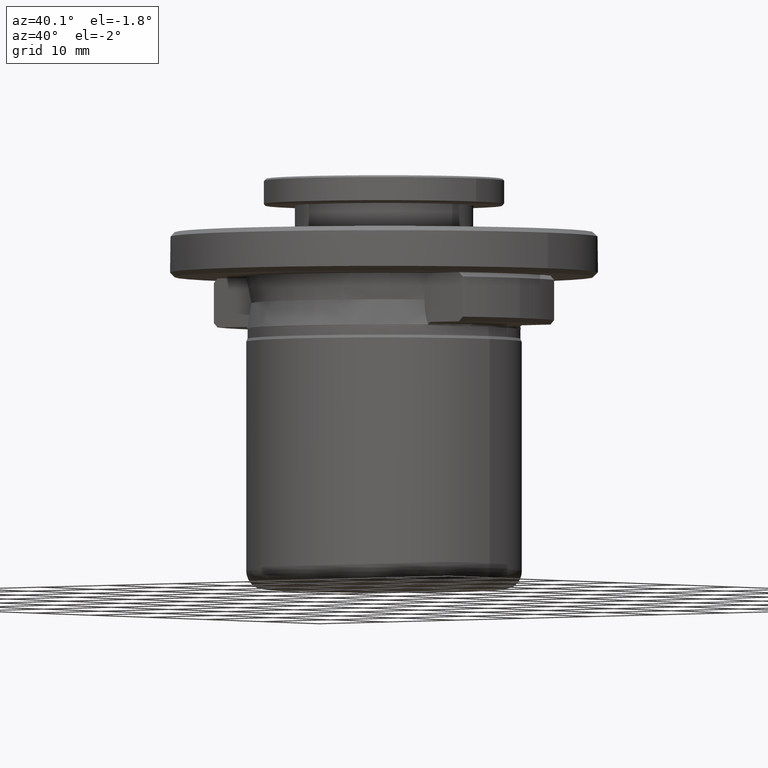
[diagram: clean part render]
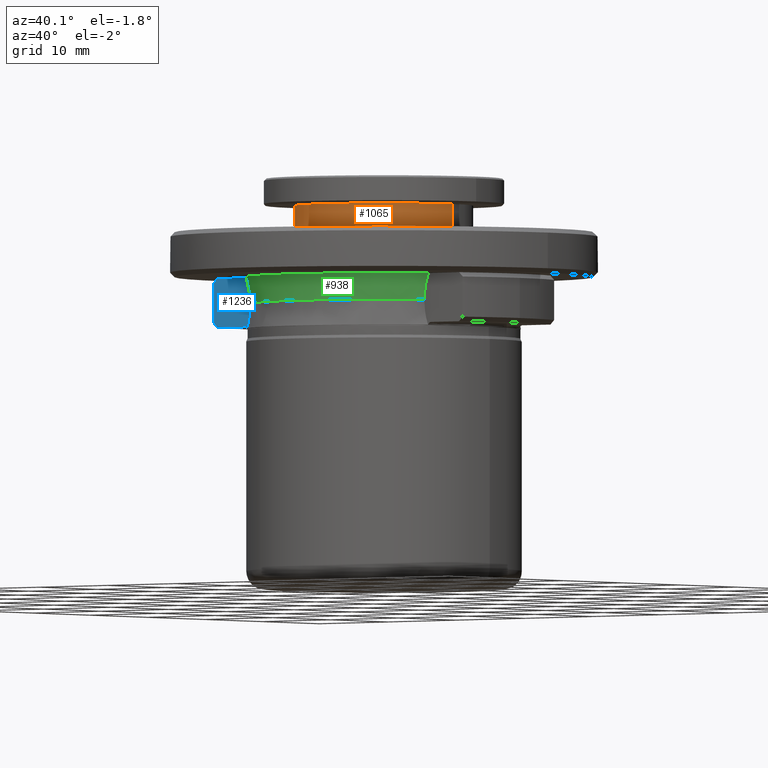
[diagram: same view with three faces highlighted in distinct colors, each labeled with its STEP entity id]
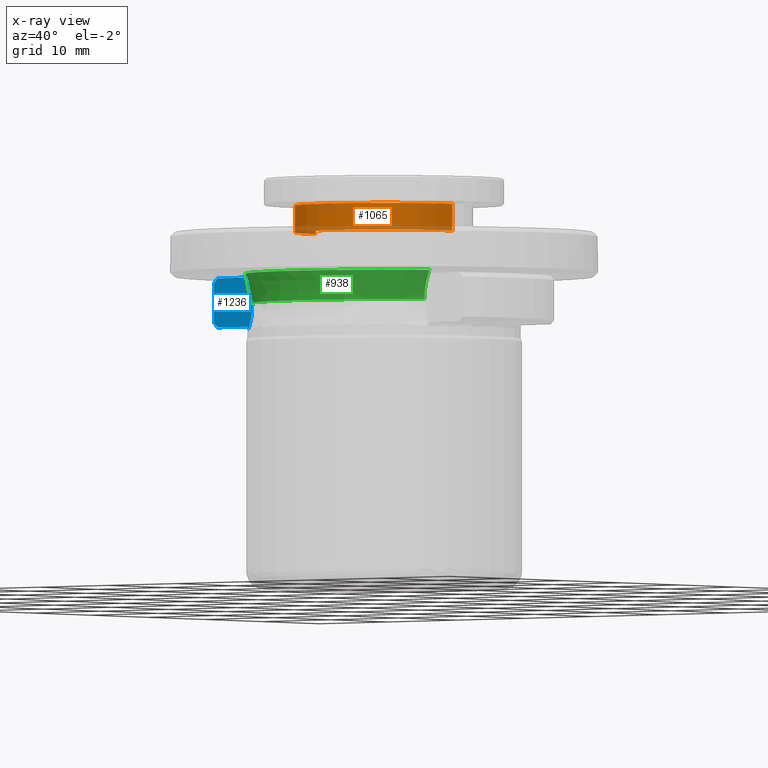
[diagram: x-ray of the same camera — body ghosted, the three highlighted faces saturated]
A machine part, auxiliary view with three faces highlighted in distinct colors.
The next image is the same camera in x-ray (body ghosted, the three faces saturated) — at least one of them is partly hidden behind the body in this view.
Their STEP definitions:

[orange] entity #1065 — the highlighted cylindrical surface (partial cylindrical patch) has radius 10 mm, axis along (-0, -0, 1).
#2 = CIRCLE ( 'NONE', #1336, 9.999999999999998200 ) ;
#9 = VECTOR ( 'NONE', #581, 1000.000000000000000 ) ;
#100 = EDGE_LOOP ( 'NONE', ( #1506, #1104, #1425, #1411 ) ) ;
#117 = VERTEX_POINT ( 'NONE', #930 ) ;
#121 = DIRECTION ( 'NONE',  ( -0.0000000000000000000, -0.0000000000000000000, 1.000000000000000000 ) ) ;
#189 = DIRECTION ( 'NONE',  ( 1.000000000000000000, 0.0000000000000000000, 0.0000000000000000000 ) ) ;
#396 = CIRCLE ( 'NONE', #1589, 9.999999999999998200 ) ;
#440 = CARTESIAN_POINT ( 'NONE',  ( 9.999999999999998200, 0.0000000000000000000, 15.43848561500005300 ) ) ;
#544 = EDGE_CURVE ( 'NONE', #1726, #1378, #396, .T. ) ;
#555 = DIRECTION ( 'NONE',  ( -0.0000000000000000000, -0.0000000000000000000, 1.000000000000000000 ) ) ;
#557 = LINE ( 'NONE', #1624, #1310 ) ;
#562 = AXIS2_PLACEMENT_3D ( 'NONE', #1715, #1706, #189 ) ;
#581 = DIRECTION ( 'NONE',  ( -0.0000000000000000000, -0.0000000000000000000, 1.000000000000000000 ) ) ;
#600 = VERTEX_POINT ( 'NONE', #440 ) ;
#702 = DIRECTION ( 'NONE',  ( 1.000000000000000000, 0.0000000000000000000, 0.0000000000000000000 ) ) ;
#822 = LINE ( 'NONE', #1598, #9 ) ;
#839 = CYLINDRICAL_SURFACE ( 'NONE', #562, 9.999999999999998200 ) ;
#876 = EDGE_CURVE ( 'NONE', #1378, #600, #822, .T. ) ;
#930 = CARTESIAN_POINT ( 'NONE',  ( -9.999999999999998200, 1.224646799147353100E-015, 15.43848561500005300 ) ) ;
#1065 = ADVANCED_FACE ( 'NONE', ( #1651 ), #839, .T. ) ;
#1104 = ORIENTED_EDGE ( 'NONE', *, *, #544, .T. ) ;
#1159 = DIRECTION ( 'NONE',  ( -1.000000000000000000, 0.0000000000000000000, 0.0000000000000000000 ) ) ;
#1310 = VECTOR ( 'NONE', #1444, 1000.000000000000000 ) ;
#1321 = EDGE_CURVE ( 'NONE', #1726, #117, #557, .T. ) ;
#1336 = AXIS2_PLACEMENT_3D ( 'NONE', #1619, #555, #702 ) ;
#1378 = VERTEX_POINT ( 'NONE', #1816 ) ;
#1395 = EDGE_CURVE ( 'NONE', #117, #600, #2, .T. ) ;
#1411 = ORIENTED_EDGE ( 'NONE', *, *, #1395, .F. ) ;
#1425 = ORIENTED_EDGE ( 'NONE', *, *, #876, .T. ) ;
#1444 = DIRECTION ( 'NONE',  ( -0.0000000000000000000, -0.0000000000000000000, 1.000000000000000000 ) ) ;
#1478 = CARTESIAN_POINT ( 'NONE',  ( -9.999999999999998200, 1.224646799147353100E-015, 12.43848561500000100 ) ) ;
#1506 = ORIENTED_EDGE ( 'NONE', *, *, #1321, .F. ) ;
#1589 = AXIS2_PLACEMENT_3D ( 'NONE', #1617, #121, #1159 ) ;
#1598 = CARTESIAN_POINT ( 'NONE',  ( 9.999999999999998200, 0.0000000000000000000, 25.60543566587849200 ) ) ;
#1617 = CARTESIAN_POINT ( 'NONE',  ( 0.0000000000000000000, 0.0000000000000000000, 12.43848561500000100 ) ) ;
#1619 = CARTESIAN_POINT ( 'NONE',  ( 0.0000000000000000000, 0.0000000000000000000, 15.43848561500005300 ) ) ;
#1624 = CARTESIAN_POINT ( 'NONE',  ( -9.999999999999998200, 1.224646799147353100E-015, 25.60543566587849200 ) ) ;
#1651 = FACE_OUTER_BOUND ( 'NONE', #100, .T. ) ;
#1706 = DIRECTION ( 'NONE',  ( -0.0000000000000000000, -0.0000000000000000000, 1.000000000000000000 ) ) ;
#1715 = CARTESIAN_POINT ( 'NONE',  ( 0.0000000000000000000, 0.0000000000000000000, 25.60543566587849200 ) ) ;
#1726 = VERTEX_POINT ( 'NONE', #1478 ) ;
#1816 = CARTESIAN_POINT ( 'NONE',  ( 9.999999999999998200, 0.0000000000000000000, 12.43848561500000100 ) ) ;

[blue] entity #1236 — the highlighted planar face has unit normal (0, 1, 0).
#10 = AXIS2_PLACEMENT_3D ( 'NONE', #569, #335, #912 ) ;
#14 = CARTESIAN_POINT ( 'NONE',  ( -18.24301236209764500, -7.950000000000000200, 6.938485614999998500 ) ) ;
#32 = CARTESIAN_POINT ( 'NONE',  ( -18.24301236209764500, -7.950000000000000200, 6.938485614999998500 ) ) ;
#44 = CARTESIAN_POINT ( 'NONE',  ( -12.91525301281999700, -7.949999999999996600, 6.721571217286125100 ) ) ;
#55 = CARTESIAN_POINT ( 'NONE',  ( -12.96762867601192500, -7.949999999999996600, 2.087259394702768700 ) ) ;
#97 = CARTESIAN_POINT ( 'NONE',  ( -15.37753341250000000, -7.950000000000000200, 1.938485615938671000 ) ) ;
#122 = CARTESIAN_POINT ( 'NONE',  ( -13.49811800150803100, -7.950000000293274900, 1.938485614484342800 ) ) ;
#127 = VERTEX_POINT ( 'NONE', #1054 ) ;
#140 = VERTEX_POINT ( 'NONE', #32 ) ;
#163 = ORIENTED_EDGE ( 'NONE', *, *, #226, .T. ) ;
#176 = B_SPLINE_CURVE_WITH_KNOTS ( 'NONE', 3,
 ( #1727, #1942, #1135, #473 ),
 .UNSPECIFIED., .F., .F.,
 ( 4, 4 ),
 ( 0.0000000000000000000, 1.000000000000000000 ),
 .UNSPECIFIED. ) ;
#193 = CARTESIAN_POINT ( 'NONE',  ( -13.14428442762027200, -7.950000000000000200, 1.633581560802892700 ) ) ;
#208 = CARTESIAN_POINT ( 'NONE',  ( -13.17140886233333900, -7.950000000000002000, 1.728407944759214000 ) ) ;
#209 = CARTESIAN_POINT ( 'NONE',  ( -12.72843880616561100, -7.950000000000000200, 5.891492498041592400 ) ) ;
#222 = VECTOR ( 'NONE', #502, 1000.000000000000000 ) ;
#226 = EDGE_CURVE ( 'NONE', #497, #1833, #1319, .T. ) ;
#335 = DIRECTION ( 'NONE',  ( 0.0000000000000000000, 1.000000000000000000, 0.0000000000000000000 ) ) ;
#351 = CARTESIAN_POINT ( 'NONE',  ( -12.60188477964945100, -7.950000000000000200, 4.478485616309445300 ) ) ;
#354 = CARTESIAN_POINT ( 'NONE',  ( -12.60188477964945100, -7.950000000000000200, 4.478485616309445300 ) ) ;
#363 = CARTESIAN_POINT ( 'NONE',  ( -12.68096660111386600, -7.950000000000002000, 5.610062528188859900 ) ) ;
#366 = EDGE_CURVE ( 'NONE', #497, #408, #1884, .T. ) ;
#374 = LINE ( 'NONE', #1229, #1944 ) ;
#395 = EDGE_CURVE ( 'NONE', #836, #1576, #176, .T. ) ;
#408 = VERTEX_POINT ( 'NONE', #1028 ) ;
#472 = CARTESIAN_POINT ( 'NONE',  ( -17.69625666640348900, -7.950000000000000200, 7.438485615000023400 ) ) ;
#473 = CARTESIAN_POINT ( 'NONE',  ( -17.69625666548679600, -7.950000000000000200, 1.938485614999998900 ) ) ;
#497 = VERTEX_POINT ( 'NONE', #354 ) ;
#502 = DIRECTION ( 'NONE',  ( -1.000000000000000000, 0.0000000000000000000, 0.0000000000000000000 ) ) ;
#503 = CARTESIAN_POINT ( 'NONE',  ( -13.09798608330491200, -7.949999999999996600, 7.256377663760557300 ) ) ;
#522 = CARTESIAN_POINT ( 'NONE',  ( -12.60188477970642400, -7.949999999999998400, 4.763219922882414400 ) ) ;
#565 = CARTESIAN_POINT ( 'NONE',  ( -12.60188477949831000, -7.950000000000000200, 3.991488783736455700 ) ) ;
#569 = CARTESIAN_POINT ( 'NONE',  ( -12.51205446400000000, -7.950000000000000200, 7.810683759999999900 ) ) ;
#628 = CARTESIAN_POINT ( 'NONE',  ( -13.59632303309489000, -7.950000000000000200, 1.938485614889212700 ) ) ;
#681 = CARTESIAN_POINT ( 'NONE',  ( -18.24301236118092700, -7.950000000000000200, 2.438485614999999400 ) ) ;
#734 = B_SPLINE_CURVE_WITH_KNOTS ( 'NONE', 3,
 ( #472, #1532, #929, #14 ),
 .UNSPECIFIED., .F., .F.,
 ( 4, 4 ),
 ( 0.0000000000000000000, 1.000000000000000000 ),
 .UNSPECIFIED. ) ;
#791 = ORIENTED_EDGE ( 'NONE', *, *, #395, .T. ) ;
#794 = DIRECTION ( 'NONE',  ( 1.000000000000000000, -0.0000000000000000000, -0.0000000000000000000 ) ) ;
#826 = CARTESIAN_POINT ( 'NONE',  ( -12.61783294890506500, -7.950000000000000200, 5.046469899217028000 ) ) ;
#836 = VERTEX_POINT ( 'NONE', #681 ) ;
#848 = CARTESIAN_POINT ( 'NONE',  ( -13.40144944765023300, -7.950000000000000200, 1.911809539114946600 ) ) ;
#889 = B_SPLINE_CURVE_WITH_KNOTS ( 'NONE', 3,
 ( #1840, #122, #848, #1213, #208, #193 ),
 .UNSPECIFIED., .F., .F.,
 ( 4, 2, 4 ),
 ( 0.0000000000000000000, 0.0002891622568369051300, 0.0005783245136738102600 ),
 .UNSPECIFIED. ) ;
#894 = EDGE_CURVE ( 'NONE', #836, #140, #374, .T. ) ;
#912 = DIRECTION ( 'NONE',  ( 0.0000000000000000000, 0.0000000000000000000, -1.000000000000000000 ) ) ;
#929 = CARTESIAN_POINT ( 'NONE',  ( -18.05844173576957000, -7.950000000000000200, 7.107687835708884600 ) ) ;
#952 = CARTESIAN_POINT ( 'NONE',  ( -12.83224210311950700, -7.950000000000000200, 2.552328994701277900 ) ) ;
#959 = CARTESIAN_POINT ( 'NONE',  ( -12.60188477964945100, -7.950000000000000200, 4.478485616309445300 ) ) ;
#987 = ORIENTED_EDGE ( 'NONE', *, *, #1815, .F. ) ;
#997 = VECTOR ( 'NONE', #1501, 1000.000000000000000 ) ;
#1028 = CARTESIAN_POINT ( 'NONE',  ( -13.14428442762027200, -7.950000000000000200, 1.633581560802892700 ) ) ;
#1033 = VERTEX_POINT ( 'NONE', #1330 ) ;
#1044 = LINE ( 'NONE', #1804, #997 ) ;
#1046 = FACE_OUTER_BOUND ( 'NONE', #1085, .T. ) ;
#1053 = CARTESIAN_POINT ( 'NONE',  ( -13.33503374469622000, -7.950000000000000200, 7.773842195335446600 ) ) ;
#1054 = CARTESIAN_POINT ( 'NONE',  ( -13.33503374469622000, -7.950000000000000200, 7.438485616000773100 ) ) ;
#1085 = EDGE_LOOP ( 'NONE', ( #1150, #1880, #791, #1805, #1830, #1620, #163, #987, #1210 ) ) ;
#1110 = CARTESIAN_POINT ( 'NONE',  ( -13.14428442762027200, -7.950000000000000200, 1.633581560802892700 ) ) ;
#1135 = CARTESIAN_POINT ( 'NONE',  ( -17.87618983503620000, -7.950000000000000200, 2.102616727624655900 ) ) ;
#1150 = ORIENTED_EDGE ( 'NONE', *, *, #1919, .T. ) ;
#1210 = ORIENTED_EDGE ( 'NONE', *, *, #1595, .F. ) ;
#1213 = CARTESIAN_POINT ( 'NONE',  ( -13.23840144163047900, -7.950000000000000200, 1.808178987610399100 ) ) ;
#1229 = CARTESIAN_POINT ( 'NONE',  ( -18.24301236100000200, -7.950000000000000200, 4.703711879000000100 ) ) ;
#1236 = ADVANCED_FACE ( 'NONE', ( #1046 ), #1670, .F. ) ;
#1256 = CARTESIAN_POINT ( 'NONE',  ( -12.64875544744961600, -7.950000000000003700, 3.506562385606966500 ) ) ;
#1319 = B_SPLINE_CURVE_WITH_KNOTS ( 'NONE', 3,
 ( #959, #522, #826, #363, #209, #44, #503, #1565 ),
 .UNSPECIFIED., .F., .F.,
 ( 4, 2, 2, 4 ),
 ( 6.548166900401175800E-015, 0.0008505270503339344100, 0.001701054100661320700, 0.003402108201316091900 ),
 .UNSPECIFIED. ) ;
#1330 = CARTESIAN_POINT ( 'NONE',  ( -17.69625666640348900, -7.950000000000000200, 7.438485615000023400 ) ) ;
#1338 = LINE ( 'NONE', #1907, #1743 ) ;
#1387 = LINE ( 'NONE', #97, #222 ) ;
#1501 = DIRECTION ( 'NONE',  ( -0.0000000000000000000, -0.0000000000000000000, 1.000000000000000000 ) ) ;
#1532 = CARTESIAN_POINT ( 'NONE',  ( -17.87618983686940400, -7.950000000000000200, 7.274354502375550700 ) ) ;
#1533 = EDGE_CURVE ( 'NONE', #1977, #408, #889, .T. ) ;
#1538 = EDGE_CURVE ( 'NONE', #1977, #1576, #1387, .T. ) ;
#1565 = CARTESIAN_POINT ( 'NONE',  ( -13.33503374469622000, -7.950000000000000200, 7.773842195335446600 ) ) ;
#1576 = VERTEX_POINT ( 'NONE', #1956 ) ;
#1595 = EDGE_CURVE ( 'NONE', #1033, #127, #1338, .T. ) ;
#1620 = ORIENTED_EDGE ( 'NONE', *, *, #366, .F. ) ;
#1670 = PLANE ( 'NONE',  #10 ) ;
#1727 = CARTESIAN_POINT ( 'NONE',  ( -18.24301236118092700, -7.950000000000000200, 2.438485614999999400 ) ) ;
#1743 = VECTOR ( 'NONE', #794, 1000.000000000000000 ) ;
#1804 = CARTESIAN_POINT ( 'NONE',  ( -13.33503374365336400, -7.950000000000000200, 4.703711879000000100 ) ) ;
#1805 = ORIENTED_EDGE ( 'NONE', *, *, #1538, .F. ) ;
#1815 = EDGE_CURVE ( 'NONE', #127, #1833, #1044, .T. ) ;
#1825 = DIRECTION ( 'NONE',  ( -0.0000000000000000000, -0.0000000000000000000, 1.000000000000000000 ) ) ;
#1830 = ORIENTED_EDGE ( 'NONE', *, *, #1533, .T. ) ;
#1833 = VERTEX_POINT ( 'NONE', #1053 ) ;
#1840 = CARTESIAN_POINT ( 'NONE',  ( -13.59632303309489000, -7.950000000000000200, 1.938485614889212700 ) ) ;
#1880 = ORIENTED_EDGE ( 'NONE', *, *, #894, .F. ) ;
#1884 = B_SPLINE_CURVE_WITH_KNOTS ( 'NONE', 3,
 ( #351, #565, #1256, #952, #55, #1110 ),
 .UNSPECIFIED., .F., .F.,
 ( 4, 2, 4 ),
 ( 5.839943168079281700E-015, 0.001455991599473873500, 0.002911983198941907200 ),
 .UNSPECIFIED. ) ;
#1907 = CARTESIAN_POINT ( 'NONE',  ( -15.37753341250000000, -7.950000000000000200, 7.438485617001545000 ) ) ;
#1919 = EDGE_CURVE ( 'NONE', #1033, #140, #734, .T. ) ;
#1942 = CARTESIAN_POINT ( 'NONE',  ( -18.05844173393636600, -7.950000000000000200, 2.269283394291322900 ) ) ;
#1944 = VECTOR ( 'NONE', #1825, 1000.000000000000000 ) ;
#1956 = CARTESIAN_POINT ( 'NONE',  ( -17.69625666548679600, -7.950000000000000200, 1.938485614999998900 ) ) ;
#1977 = VERTEX_POINT ( 'NONE', #628 ) ;

[green] entity #938 — the highlighted face is a freeform B-spline surface patch.
#44 = CARTESIAN_POINT ( 'NONE',  ( -12.91525301281999700, -7.949999999999996600, 6.721571217286125100 ) ) ;
#92 = FACE_OUTER_BOUND ( 'NONE', #914, .T. ) ;
#203 = CARTESIAN_POINT ( 'NONE',  ( 13.33503374427947300, -7.950000000000000200, 7.773842195201675400 ) ) ;
#209 = CARTESIAN_POINT ( 'NONE',  ( -12.72843880616561100, -7.950000000000000200, 5.891492498041592400 ) ) ;
#211 = CARTESIAN_POINT ( 'NONE',  ( 12.66535530415376300, -7.950000000000000200, 5.609358371925920600 ) ) ;
#226 = EDGE_CURVE ( 'NONE', #497, #1833, #1319, .T. ) ;
#241 = CARTESIAN_POINT ( 'NONE',  ( -13.06160257300000200, -7.569086716999999400, 7.038194950000000300 ) ) ;
#256 = CARTESIAN_POINT ( 'NONE',  ( 6.867173271999999600, -19.85324952300000200, 8.593484004000002200 ) ) ;
#270 = AXIS2_PLACEMENT_3D ( 'NONE', #812, #1418, #1118 ) ;
#277 = CIRCLE ( 'NONE', #270, 14.89999999993788300 ) ;
#286 = EDGE_CURVE ( 'NONE', #1833, #664, #1584, .T. ) ;
#290 = ORIENTED_EDGE ( 'NONE', *, *, #226, .F. ) ;
#354 = CARTESIAN_POINT ( 'NONE',  ( -12.60188477964945100, -7.950000000000000200, 4.478485616309445300 ) ) ;
#363 = CARTESIAN_POINT ( 'NONE',  ( -12.68096660111386600, -7.950000000000002000, 5.610062528188859900 ) ) ;
#365 = ORIENTED_EDGE ( 'NONE', *, *, #383, .F. ) ;
#382 = CARTESIAN_POINT ( 'NONE',  ( -13.75342066000000000, -7.969989367000000200, 8.593484004000002200 ) ) ;
#383 = EDGE_CURVE ( 'NONE', #1951, #497, #277, .T. ) ;
#401 = CARTESIAN_POINT ( 'NONE',  ( -6.380965633999999800, -18.44760542900000300, 5.320036143999999500 ) ) ;
#407 = EDGE_CURVE ( 'NONE', #664, #1951, #1291, .T. ) ;
#445 =( BOUNDED_SURFACE ( )  B_SPLINE_SURFACE ( 3, 3, ( 
 ( #1751, #1246, #1049, #740 ),
 ( #1521, #401, #536, #1121 ),
 ( #241, #760, #1608, #470 ),
 ( #382, #978, #256, #1226 ) ),
 .UNSPECIFIED., .F., .F., .F. ) 
 B_SPLINE_SURFACE_WITH_KNOTS ( ( 4, 4 ),
 ( 4, 4 ),
 ( 0.0000000000000000000, 1.000000000000000000 ),
 ( 0.0000000000000000000, 1.000000000000000000 ),
 .UNSPECIFIED. ) 
 GEOMETRIC_REPRESENTATION_ITEM ( )  RATIONAL_B_SPLINE_SURFACE ( (
 ( 1.000000000000000000, 0.6675925262800090900, 0.6675925262800090900, 1.000000000000000000),
 ( 0.9726495440996750800, 0.6493335663306010200, 0.6493335663306010200, 0.9726495440996750800),
 ( 0.9726495440996750800, 0.6493335663306010200, 0.6493335663306010200, 0.9726495440996750800),
 ( 1.000000000000000000, 0.6675925262800090900, 0.6675925262800090900, 1.000000000000000000) ) ) 
 REPRESENTATION_ITEM ( '' )  SURFACE ( )  );
#470 = CARTESIAN_POINT ( 'NONE',  ( 13.06160257300000200, -7.569086716999999400, 7.038194950000000300 ) ) ;
#497 = VERTEX_POINT ( 'NONE', #354 ) ;
#503 = CARTESIAN_POINT ( 'NONE',  ( -13.09798608330491200, -7.949999999999996600, 7.256377663760557300 ) ) ;
#522 = CARTESIAN_POINT ( 'NONE',  ( -12.60188477970642400, -7.949999999999998400, 4.763219922882414400 ) ) ;
#536 = CARTESIAN_POINT ( 'NONE',  ( 6.380965633999999800, -18.44760542900000300, 5.320036143999999500 ) ) ;
#556 = CARTESIAN_POINT ( 'NONE',  ( 13.11138746151054600, -7.950000000000068600, 7.251408265727680400 ) ) ;
#579 = CARTESIAN_POINT ( 'NONE',  ( 12.85156216844219500, -7.949999999999998400, 6.439474253217602100 ) ) ;
#664 = VERTEX_POINT ( 'NONE', #818 ) ;
#729 = ORIENTED_EDGE ( 'NONE', *, *, #286, .F. ) ;
#740 = CARTESIAN_POINT ( 'NONE',  ( 12.93071184499999900, -7.493236662000000200, 3.579984865000000100 ) ) ;
#760 = CARTESIAN_POINT ( 'NONE',  ( -6.521743957000000000, -18.85460071800000400, 7.038194949999999400 ) ) ;
#769 = CARTESIAN_POINT ( 'NONE',  ( 13.21647750718658500, -7.950000000000000200, 7.515039186203701100 ) ) ;
#812 = CARTESIAN_POINT ( 'NONE',  ( 5.204170427930421300E-015, 2.532479434491641300E-011, 4.478485616159577600 ) ) ;
#818 = CARTESIAN_POINT ( 'NONE',  ( 13.33503374427947300, -7.950000000000000200, 7.773842195201675400 ) ) ;
#826 = CARTESIAN_POINT ( 'NONE',  ( -12.61783294890506500, -7.950000000000000200, 5.046469899217028000 ) ) ;
#914 = EDGE_LOOP ( 'NONE', ( #365, #1220, #729, #290 ) ) ;
#938 = ADVANCED_FACE ( 'NONE', ( #92 ), #445, .F. ) ;
#959 = CARTESIAN_POINT ( 'NONE',  ( -12.60188477964945100, -7.950000000000000200, 4.478485616309445300 ) ) ;
#978 = CARTESIAN_POINT ( 'NONE',  ( -6.867173271999999600, -19.85324952300000200, 8.593484004000002200 ) ) ;
#1012 = AXIS2_PLACEMENT_3D ( 'NONE', #1316, #1512, #1788 ) ;
#1049 = CARTESIAN_POINT ( 'NONE',  ( 6.456389356999999900, -18.66565817500000100, 3.579984865000000600 ) ) ;
#1053 = CARTESIAN_POINT ( 'NONE',  ( -13.33503374469622000, -7.950000000000000200, 7.773842195335446600 ) ) ;
#1118 = DIRECTION ( 'NONE',  ( -1.000000000000000000, 0.0000000000000000000, 0.0000000000000000000 ) ) ;
#1121 = CARTESIAN_POINT ( 'NONE',  ( 12.77965490400000300, -7.405700459999999400, 5.320036143999999500 ) ) ;
#1220 = ORIENTED_EDGE ( 'NONE', *, *, #407, .F. ) ;
#1226 = CARTESIAN_POINT ( 'NONE',  ( 13.75342066000000000, -7.969989367000000200, 8.593484004000002200 ) ) ;
#1246 = CARTESIAN_POINT ( 'NONE',  ( -6.456389356999999900, -18.66565817500000100, 3.579984865000000600 ) ) ;
#1291 = B_SPLINE_CURVE_WITH_KNOTS ( 'NONE', 3,
 ( #203, #769, #556, #1492, #579, #211, #1799, #1534 ),
 .UNSPECIFIED., .F., .F.,
 ( 4, 2, 2, 4 ),
 ( 0.0000000000000000000, 0.0008508907945670186100, 0.001701781589134037200, 0.003403563178268072300 ),
 .UNSPECIFIED. ) ;
#1316 = CARTESIAN_POINT ( 'NONE',  ( 0.0000000000000000000, -6.203609322017933200E-033, 7.773842196000001300 ) ) ;
#1319 = B_SPLINE_CURVE_WITH_KNOTS ( 'NONE', 3,
 ( #959, #522, #826, #363, #209, #44, #503, #1565 ),
 .UNSPECIFIED., .F., .F.,
 ( 4, 2, 2, 4 ),
 ( 6.548166900401175800E-015, 0.0008505270503339344100, 0.001701054100661320700, 0.003402108201316091900 ),
 .UNSPECIFIED. ) ;
#1376 = CARTESIAN_POINT ( 'NONE',  ( 12.60188477964879200, -7.950000000000000200, 4.478485616234512400 ) ) ;
#1418 = DIRECTION ( 'NONE',  ( 0.0000000000000000000, -0.0000000000000000000, -1.000000000000000000 ) ) ;
#1492 = CARTESIAN_POINT ( 'NONE',  ( 12.92903265801172500, -7.950000000000069500, 6.714170475495292200 ) ) ;
#1512 = DIRECTION ( 'NONE',  ( -0.0000000000000000000, 2.793435549076984100E-017, 1.000000000000000000 ) ) ;
#1521 = CARTESIAN_POINT ( 'NONE',  ( -12.77965490400000300, -7.405700459999999400, 5.320036143999999500 ) ) ;
#1534 = CARTESIAN_POINT ( 'NONE',  ( 12.60188477964879200, -7.950000000000000200, 4.478485616234512400 ) ) ;
#1565 = CARTESIAN_POINT ( 'NONE',  ( -13.33503374469622000, -7.950000000000000200, 7.773842195335446600 ) ) ;
#1584 = CIRCLE ( 'NONE', #1012, 15.52500000000000000 ) ;
#1608 = CARTESIAN_POINT ( 'NONE',  ( 6.521743957000000000, -18.85460071800000400, 7.038194949999999400 ) ) ;
#1751 = CARTESIAN_POINT ( 'NONE',  ( -12.93071184499999900, -7.493236662000000200, 3.579984865000000100 ) ) ;
#1788 = DIRECTION ( 'NONE',  ( 0.0000000000000000000, 1.000000000000000000, -5.586871098153968300E-017 ) ) ;
#1799 = CARTESIAN_POINT ( 'NONE',  ( 12.60188477983408700, -7.950000000000000200, 5.048052196196316300 ) ) ;
#1833 = VERTEX_POINT ( 'NONE', #1053 ) ;
#1951 = VERTEX_POINT ( 'NONE', #1376 ) ;